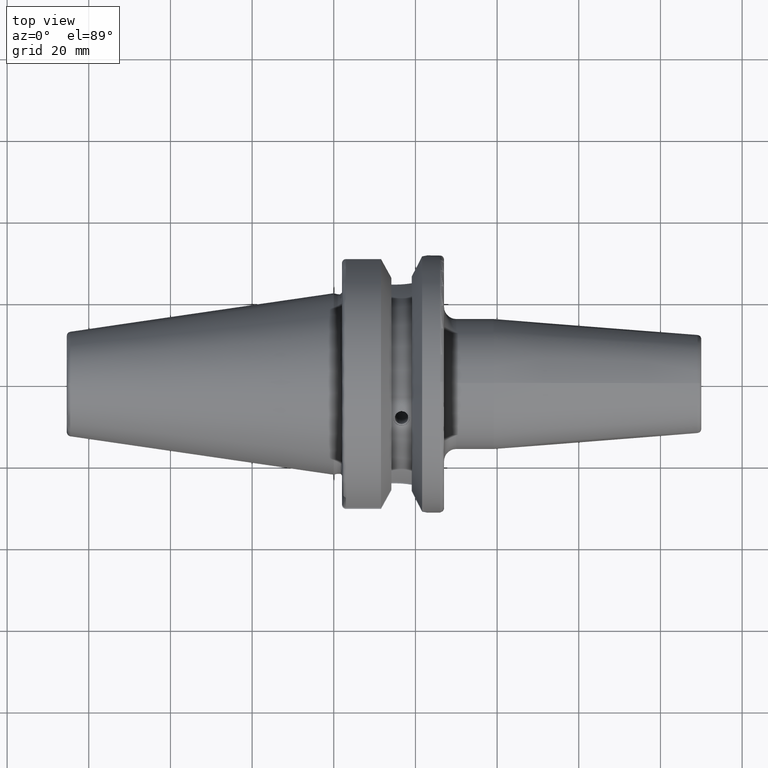
[diagram: clean part render]
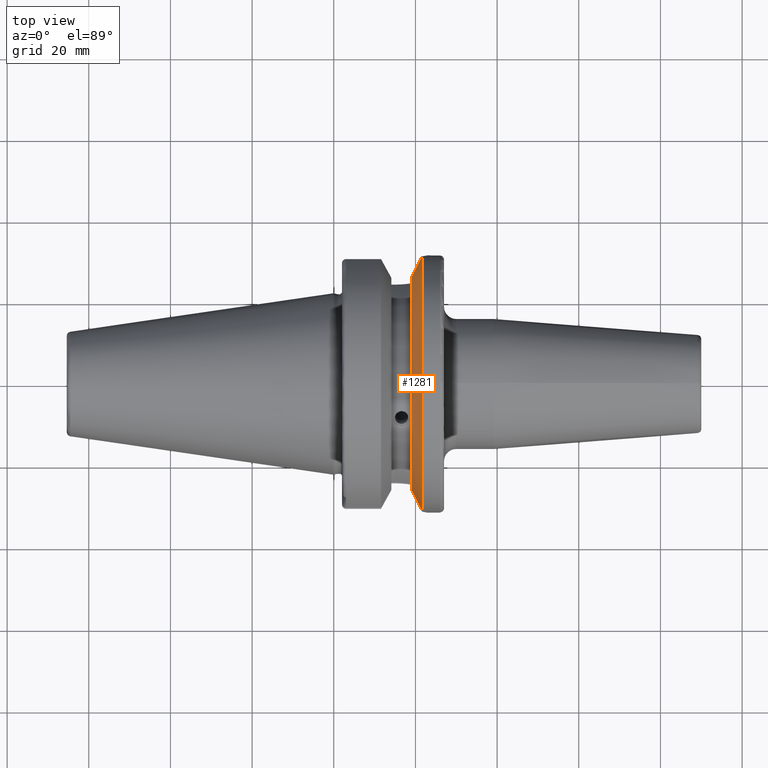
[diagram: same view with one face highlighted and labeled with its STEP entity id]
A machine part, top view. The second image highlights one B-rep face of the part: STEP entity #1281.
In plain terms, the highlighted conical surface has half-angle 60.125 deg.
Its self-contained STEP definition (entity closure, byte-faithful):
#34=B_SPLINE_CURVE_WITH_KNOTS('',3,(#2271,#2272,#2273,#2274,#2275,#2276),
 .UNSPECIFIED.,.F.,.F.,(4,2,4),(1.46421027899559,1.54570476603972,2.04294020568399),
 .UNSPECIFIED.);
#43=B_SPLINE_CURVE_WITH_KNOTS('',3,(#2430,#2431,#2432,#2433,#2434,#2435),
 .UNSPECIFIED.,.F.,.F.,(4,2,4),(3.12975744792547,3.62699288756974,3.70848737461386),
 .UNSPECIFIED.);
#132=CONICAL_SURFACE('',#1450,29.2970358274569,1.0493792127616);
#193=FACE_OUTER_BOUND('',#282,.T.);
#282=EDGE_LOOP('',(#1108,#1109,#1110,#1111));
#348=CIRCLE('',#1429,31.5);
#358=CIRCLE('',#1451,27.0940716549138);
#582=VERTEX_POINT('',#2263);
#583=VERTEX_POINT('',#2270);
#603=VERTEX_POINT('',#2350);
#616=VERTEX_POINT('',#2428);
#737=EDGE_CURVE('',#583,#582,#34,.T.);
#762=EDGE_CURVE('',#603,#582,#348,.T.);
#784=EDGE_CURVE('',#603,#616,#43,.T.);
#795=EDGE_CURVE('',#616,#583,#358,.T.);
#1108=ORIENTED_EDGE('',*,*,#737,.T.);
#1109=ORIENTED_EDGE('',*,*,#762,.F.);
#1110=ORIENTED_EDGE('',*,*,#784,.T.);
#1111=ORIENTED_EDGE('',*,*,#795,.T.);
#1281=ADVANCED_FACE('',(#193),#132,.T.);
#1429=AXIS2_PLACEMENT_3D('',#2361,#1752,#1753);
#1450=AXIS2_PLACEMENT_3D('',#2467,#1809,#1810);
#1451=AXIS2_PLACEMENT_3D('',#2468,#1811,#1812);
#1752=DIRECTION('center_axis',(1.,0.,0.));
#1753=DIRECTION('ref_axis',(0.,0.,-1.));
#1809=DIRECTION('center_axis',(1.,0.,0.));
#1810=DIRECTION('ref_axis',(0.,1.,0.));
#1811=DIRECTION('center_axis',(1.,0.,0.));
#1812=DIRECTION('ref_axis',(0.,0.,-1.));
#2263=CARTESIAN_POINT('',(21.6309636926618,-31.1782420264945,4.4907932637046));
#2270=CARTESIAN_POINT('',(19.1,-26.201311395455,6.89782574439221));
#2271=CARTESIAN_POINT('Ctrl Pts',(19.1,-26.201311395455,6.89782574439221));
#2272=CARTESIAN_POINT('Ctrl Pts',(19.2210929544554,-26.4384736933511,6.82497151762395));
#2273=CARTESIAN_POINT('Ctrl Pts',(19.3406963650697,-26.6728819297428,6.74867108656039));
#2274=CARTESIAN_POINT('Ctrl Pts',(20.1784155384866,-28.3157123387484,6.18231368976925));
#2275=CARTESIAN_POINT('Ctrl Pts',(20.9728756148303,-29.8797957262939,5.46983244373115));
#2276=CARTESIAN_POINT('Ctrl Pts',(21.6309636926618,-31.1782420264945,4.4907932637046));
#2350=CARTESIAN_POINT('',(21.6309636926618,31.1782420264945,4.4907932637046));
#2361=CARTESIAN_POINT('Origin',(21.6309636926618,0.,0.));
#2428=CARTESIAN_POINT('',(19.1,26.201311395455,6.89782574439221));
#2430=CARTESIAN_POINT('Ctrl Pts',(21.6309636926618,31.1782420264945,4.4907932637046));
#2431=CARTESIAN_POINT('Ctrl Pts',(20.9728756148303,29.8797957262939,5.46983244373114));
#2432=CARTESIAN_POINT('Ctrl Pts',(20.1784155384866,28.3157123387484,6.18231368976924));
#2433=CARTESIAN_POINT('Ctrl Pts',(19.3406963650697,26.6728819297428,6.74867108656039));
#2434=CARTESIAN_POINT('Ctrl Pts',(19.2210929544554,26.438473693351,6.82497151762395));
#2435=CARTESIAN_POINT('Ctrl Pts',(19.1,26.201311395455,6.89782574439221));
#2467=CARTESIAN_POINT('Origin',(20.3654818463309,0.,0.));
#2468=CARTESIAN_POINT('Origin',(19.1,0.,0.));